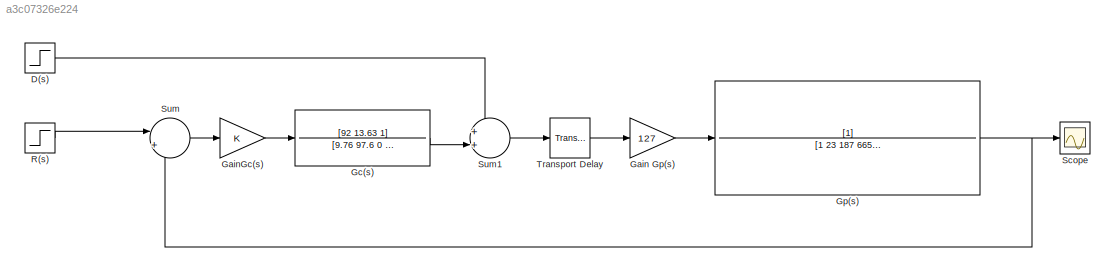
MODEL slx_a3c07326e224
KIND model
CONFIG AbsTol = auto
CONFIG EnableMultiTasking = off
CONFIG FixedStep = auto
CONFIG MaxStep = auto
CONFIG MinStep = auto
CONFIG RelTol = 1e-3
CONFIG SampleTimeConstraint = Unconstrained
CONFIG Solver = VariableStepAuto
CONFIG SolverName = VariableStepAuto
CONFIG StartTime = 0.0
CONFIG StopTime = 300
BLOCK [Step] D(s)
  After = 0.25
  SampleTime = 0
  Time = 150
BLOCK [Gain] Gain Gp(s)
  Gain = 127
  OutDataTypeStr = Inherit: Inherit via internal rule
  ParamDataTypeStr = Inherit: Inherit via internal rule
  SaturateOnIntegerOverflow = off
BLOCK [Gain] GainGc(s)
  OutDataTypeStr = Inherit: Inherit via internal rule
  ParamDataTypeStr = Inherit: Inherit via internal rule
  SaturateOnIntegerOverflow = off
BLOCK [TransferFcn] Gc(s)
  Denominator = [9.76 97.6 0 0]
  Numerator = [92 13.63 1]
BLOCK [TransferFcn] Gp(s)
  Denominator = [1 23 187 665 1000 500 0]
BLOCK [Step] R(s)
  SampleTime = 0
  Time = 0
BLOCK [Scope] Scope
  Floating = off
  NumInputPorts = 1
  Ports = [1]
  ScopeSpecificationString = Simulink.scopes.TimeScopeBlockCfg('CurrentConfiguration', extmgr.ConfigurationSet(extmgr.Configuration('Core','General UI',true,'DisplayFullSourceName',true),extmgr.Configuration('Core','Source UI',true),extmgr.Configuration('Sources','WiredSimulink',true),extmgr.Configuration('Visuals','Time Domain',true,'SerializedDisplays',{struct('MinYLimReal','-0.32738','MaxYLimReal','2.94639','YLabelReal',''...<+1526ch>
BLOCK [Sum] Sum
  IconShape = round
  InputSameDT = off
  Inputs = |+-
  OutDataTypeStr = Inherit: Inherit via internal rule
  Ports = [2, 1]
  SaturateOnIntegerOverflow = off
BLOCK [Sum] Sum1
  IconShape = round
  InputSameDT = off
  Inputs = ++|
  OutDataTypeStr = Inherit: Inherit via internal rule
  Ports = [2, 1]
  SaturateOnIntegerOverflow = off
BLOCK [TransportDelay] Transport Delay
  DelayTime = 0.2
  Ports = [1, 1]
LINE D(s):1 -> Sum1:1
LINE Gain Gp(s):1 -> Gp(s):1
LINE GainGc(s):1 -> Gc(s):1
LINE Gc(s):1 -> Sum1:2
NET Gp(s):1 -> Scope:1, Sum:2
LINE R(s):1 -> Sum:1
LINE Sum1:1 -> Transport Delay:1
LINE Sum:1 -> GainGc(s):1
LINE Transport Delay:1 -> Gain Gp(s):1
note: NET lines group one-source signal fan-out (src -> all destinations, sorted); 1:1 wires keep LINE
